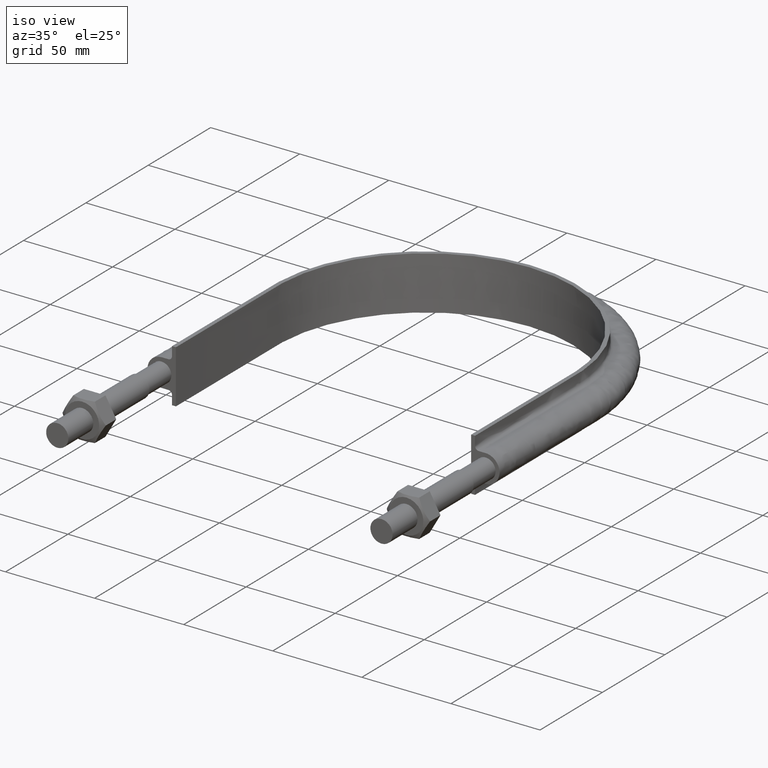
[diagram: clean part render]
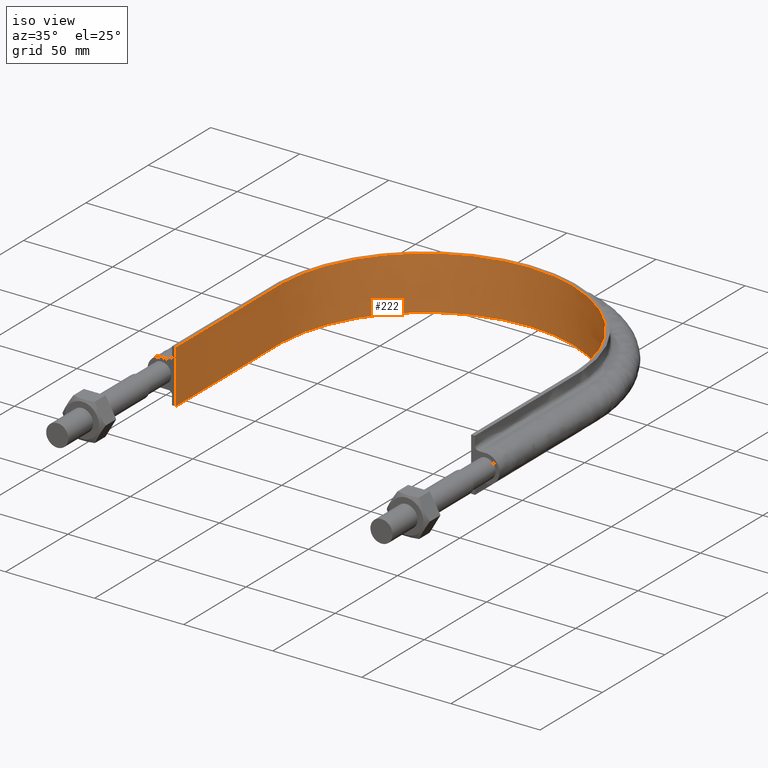
[diagram: same view with one face highlighted and labeled with its STEP entity id]
A machine part, iso view. The second image highlights one B-rep face of the part: STEP entity #222.
In plain terms, the highlighted face is a SurfaceOfExtrusion surface.
Its self-contained STEP definition (entity closure, byte-faithful):
#222 = ADVANCED_FACE( '', ( #268 ), #269, .T. );
#268 = FACE_OUTER_BOUND( '', #370, .T. );
#269 = SURFACE_OF_LINEAR_EXTRUSION( '', #371, #372 );
#370 = EDGE_LOOP( '', ( #1386, #1387, #1388, #1389 ) );
#371 = B_SPLINE_CURVE_WITH_KNOTS( '', 3, ( #1390, #1391, #1392, #1393, #1394, #1395, #1396, #1397, #1398, #1399, #1400, #1401, #1402, #1403, #1404, #1405, #1406 ), .UNSPECIFIED., .F., .F., ( 4, 3, 1, 1, 1, 1, 1, 1, 1, 3, 4 ), ( -10.0000000000000, -9.00000000000000, -8.00000000000000, -7.00000000000000, -6.00000000000000, -5.00000000000000, -4.00000000000000, -3.00000000000000, -2.00000000000000, -1.00000000000000, 0.000000000000000 ), .UNSPECIFIED. );
#372 = VECTOR( '', #1407, 1000.00000000000 );
#1386 = ORIENTED_EDGE( '', *, *, #1665, .F. );
#1387 = ORIENTED_EDGE( '', *, *, #1653, .F. );
#1388 = ORIENTED_EDGE( '', *, *, #1663, .T. );
#1389 = ORIENTED_EDGE( '', *, *, #1658, .T. );
#1390 = CARTESIAN_POINT( '', ( -82.8500000000000, 83.5000000000001, -278.469308654335 ) );
#1391 = CARTESIAN_POINT( '', ( -82.8500000000000, 110.716666666667, -278.469308654335 ) );
#1392 = CARTESIAN_POINT( '', ( -82.8500000000000, 137.933333333333, -278.469308654335 ) );
#1393 = CARTESIAN_POINT( '', ( -82.8500000000000, 165.150000000000, -278.469308654335 ) );
#1394 = CARTESIAN_POINT( '', ( -82.8500000000000, 175.979512005492, -278.469308654335 ) );
#1395 = CARTESIAN_POINT( '', ( -78.5361555605724, 197.687272457852, -278.469308654335 ) );
#1396 = CARTESIAN_POINT( '', ( -60.1089711493570, 225.257212617967, -278.469308654335 ) );
#1397 = CARTESIAN_POINT( '', ( -32.5307407698323, 243.686657998112, -278.469308654335 ) );
#1398 = CARTESIAN_POINT( '', ( 5.83899204915099E-014, 250.156671000944, -278.469308654335 ) );
#1399 = CARTESIAN_POINT( '', ( 32.5307407698323, 243.686657998112, -278.469308654335 ) );
#1400 = CARTESIAN_POINT( '', ( 60.1089711493571, 225.257212617967, -278.469308654335 ) );
#1401 = CARTESIAN_POINT( '', ( 78.5361555605725, 197.687272457852, -278.469308654335 ) );
#1402 = CARTESIAN_POINT( '', ( 82.8500000000000, 175.979512005492, -278.469308654335 ) );
#1403 = CARTESIAN_POINT( '', ( 82.8500000000000, 165.150000000000, -278.469308654335 ) );
#1404 = CARTESIAN_POINT( '', ( 82.8500000000000, 137.933333333333, -278.469308654335 ) );
#1405 = CARTESIAN_POINT( '', ( 82.8500000000000, 110.716666666667, -278.469308654335 ) );
#1406 = CARTESIAN_POINT( '', ( 82.8500000000000, 83.5000000000000, -278.469308654335 ) );
#1407 = DIRECTION( '', ( 0.000000000000000, 0.000000000000000, 1.00000000000000 ) );
#1653 = EDGE_CURVE( '', #1735, #1736, #1737, .T. );
#1658 = EDGE_CURVE( '', #1745, #1746, #1747, .T. );
#1663 = EDGE_CURVE( '', #1735, #1745, #1755, .T. );
#1665 = EDGE_CURVE( '', #1736, #1746, #1757, .T. );
#1735 = VERTEX_POINT( '', #1883 );
#1736 = VERTEX_POINT( '', #1884 );
#1737 = LINE( '', #1885, #1886 );
#1745 = VERTEX_POINT( '', #1936 );
#1746 = VERTEX_POINT( '', #1937 );
#1747 = LINE( '', #1938, #1939 );
#1755 = B_SPLINE_CURVE_WITH_KNOTS( '', 3, ( #1989, #1990, #1991, #1992, #1993, #1994, #1995, #1996, #1997, #1998, #1999, #2000, #2001, #2002, #2003, #2004, #2005 ), .UNSPECIFIED., .F., .F., ( 4, 3, 1, 1, 1, 1, 1, 1, 1, 3, 4 ), ( -10.0000000000000, -9.00000000000000, -8.00000000000000, -7.00000000000000, -6.00000000000000, -5.00000000000000, -4.00000000000000, -3.00000000000000, -2.00000000000000, -1.00000000000000, 0.000000000000000 ), .UNSPECIFIED. );
#1757 = B_SPLINE_CURVE_WITH_KNOTS( '', 3, ( #2023, #2024, #2025, #2026, #2027, #2028, #2029, #2030, #2031, #2032, #2033, #2034, #2035, #2036, #2037, #2038, #2039 ), .UNSPECIFIED., .F., .F., ( 4, 3, 1, 1, 1, 1, 1, 1, 1, 3, 4 ), ( -10.0000000000000, -9.00000000000000, -8.00000000000000, -7.00000000000000, -6.00000000000000, -5.00000000000000, -4.00000000000000, -3.00000000000000, -2.00000000000000, -1.00000000000000, 0.000000000000000 ), .UNSPECIFIED. );
#1883 = CARTESIAN_POINT( '', ( -82.8499999999999, 83.5000000000003, -15.0000000000000 ) );
#1884 = CARTESIAN_POINT( '', ( -82.8499999999999, 83.5000000000003, 15.0000000000000 ) );
#1885 = CARTESIAN_POINT( '', ( -82.8500000000000, 83.5000000000001, -278.469308654335 ) );
#1886 = VECTOR( '', #2385, 1000.00000000000 );
#1936 = CARTESIAN_POINT( '', ( 82.8500000000000, 83.5000000000000, -15.0000000000000 ) );
#1937 = CARTESIAN_POINT( '', ( 82.8500000000002, 83.5000000000003, 15.0000000000000 ) );
#1938 = CARTESIAN_POINT( '', ( 82.8500000000000, 83.5000000000000, -278.469308654335 ) );
#1939 = VECTOR( '', #2388, 1000.00000000000 );
#1989 = CARTESIAN_POINT( '', ( -82.8500000000000, 83.5000000000001, -15.0000000000000 ) );
#1990 = CARTESIAN_POINT( '', ( -82.8500000000000, 110.716666666667, -15.0000000000000 ) );
#1991 = CARTESIAN_POINT( '', ( -82.8500000000000, 137.933333333333, -15.0000000000000 ) );
#1992 = CARTESIAN_POINT( '', ( -82.8500000000000, 165.150000000000, -15.0000000000000 ) );
#1993 = CARTESIAN_POINT( '', ( -82.8500000000000, 175.979512005492, -15.0000000000000 ) );
#1994 = CARTESIAN_POINT( '', ( -78.5361555605724, 197.687272457852, -15.0000000000000 ) );
#1995 = CARTESIAN_POINT( '', ( -60.1089711493570, 225.257212617967, -15.0000000000000 ) );
#1996 = CARTESIAN_POINT( '', ( -32.5307407698323, 243.686657998112, -15.0000000000000 ) );
#1997 = CARTESIAN_POINT( '', ( 5.83899204915099E-014, 250.156671000944, -15.0000000000000 ) );
#1998 = CARTESIAN_POINT( '', ( 32.5307407698323, 243.686657998112, -15.0000000000000 ) );
#1999 = CARTESIAN_POINT( '', ( 60.1089711493571, 225.257212617967, -15.0000000000000 ) );
#2000 = CARTESIAN_POINT( '', ( 78.5361555605725, 197.687272457852, -15.0000000000000 ) );
#2001 = CARTESIAN_POINT( '', ( 82.8500000000000, 175.979512005492, -15.0000000000000 ) );
#2002 = CARTESIAN_POINT( '', ( 82.8500000000000, 165.150000000000, -15.0000000000000 ) );
#2003 = CARTESIAN_POINT( '', ( 82.8500000000000, 137.933333333333, -15.0000000000000 ) );
#2004 = CARTESIAN_POINT( '', ( 82.8500000000000, 110.716666666667, -15.0000000000000 ) );
#2005 = CARTESIAN_POINT( '', ( 82.8500000000000, 83.5000000000000, -15.0000000000000 ) );
#2023 = CARTESIAN_POINT( '', ( -82.8500000000000, 83.5000000000001, 15.0000000000000 ) );
#2024 = CARTESIAN_POINT( '', ( -82.8500000000000, 110.716666666667, 15.0000000000000 ) );
#2025 = CARTESIAN_POINT( '', ( -82.8500000000000, 137.933333333333, 15.0000000000000 ) );
#2026 = CARTESIAN_POINT( '', ( -82.8500000000000, 165.150000000000, 15.0000000000000 ) );
#2027 = CARTESIAN_POINT( '', ( -82.8500000000000, 175.979512005492, 15.0000000000000 ) );
#2028 = CARTESIAN_POINT( '', ( -78.5361555605724, 197.687272457852, 15.0000000000000 ) );
#2029 = CARTESIAN_POINT( '', ( -60.1089711493570, 225.257212617967, 15.0000000000000 ) );
#2030 = CARTESIAN_POINT( '', ( -32.5307407698323, 243.686657998112, 15.0000000000000 ) );
#2031 = CARTESIAN_POINT( '', ( 5.83899204915099E-014, 250.156671000944, 15.0000000000000 ) );
#2032 = CARTESIAN_POINT( '', ( 32.5307407698323, 243.686657998112, 15.0000000000000 ) );
#2033 = CARTESIAN_POINT( '', ( 60.1089711493571, 225.257212617967, 15.0000000000000 ) );
#2034 = CARTESIAN_POINT( '', ( 78.5361555605725, 197.687272457852, 15.0000000000000 ) );
#2035 = CARTESIAN_POINT( '', ( 82.8500000000000, 175.979512005492, 15.0000000000000 ) );
#2036 = CARTESIAN_POINT( '', ( 82.8500000000000, 165.150000000000, 15.0000000000000 ) );
#2037 = CARTESIAN_POINT( '', ( 82.8500000000000, 137.933333333333, 15.0000000000000 ) );
#2038 = CARTESIAN_POINT( '', ( 82.8500000000000, 110.716666666667, 15.0000000000000 ) );
#2039 = CARTESIAN_POINT( '', ( 82.8500000000000, 83.5000000000000, 15.0000000000000 ) );
#2385 = DIRECTION( '', ( 0.000000000000000, 0.000000000000000, 1.00000000000000 ) );
#2388 = DIRECTION( '', ( 0.000000000000000, 0.000000000000000, 1.00000000000000 ) );